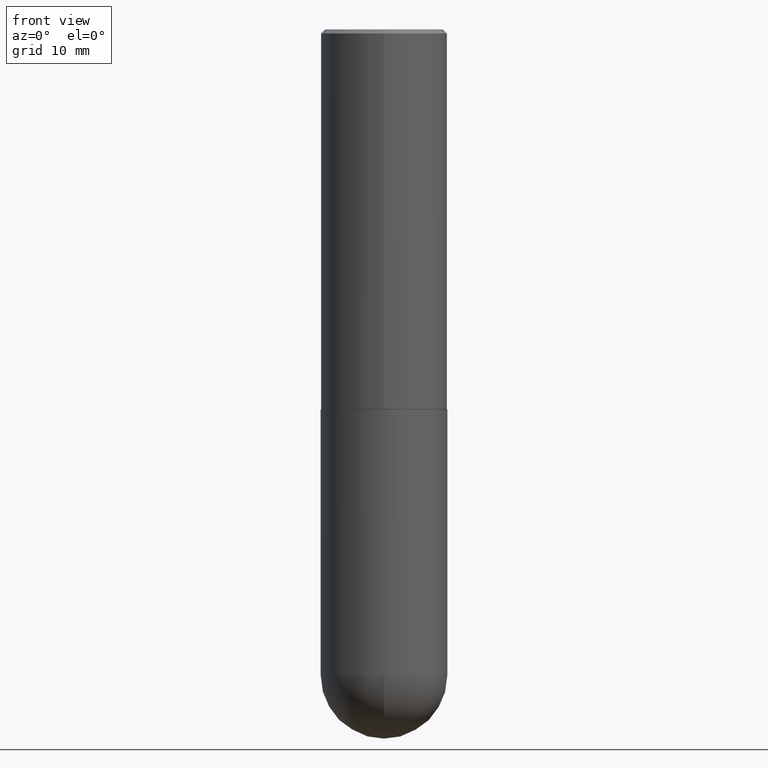
[diagram: clean part render]
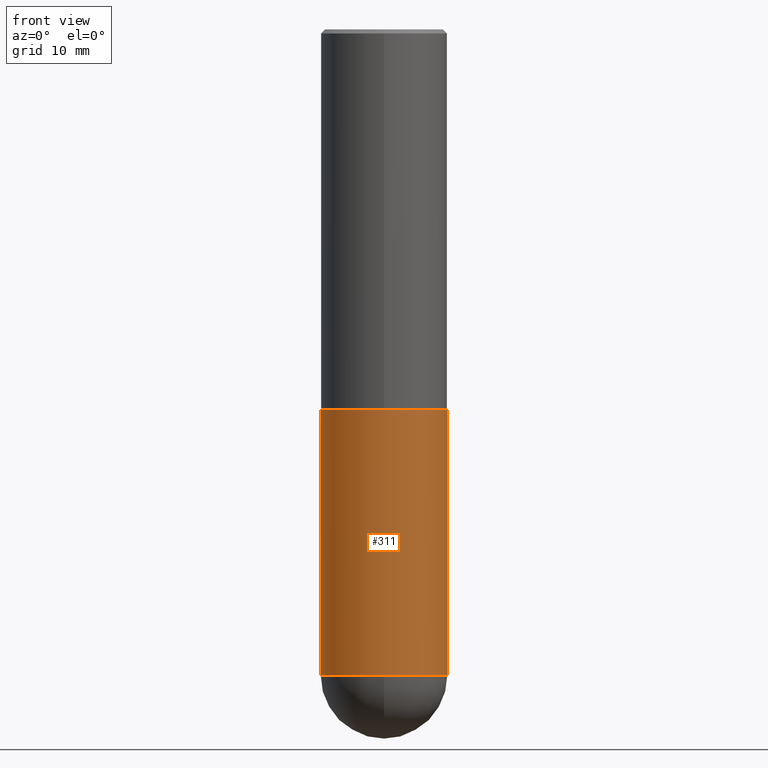
[diagram: same view with one face highlighted and labeled with its STEP entity id]
A machine part, front view. The second image highlights one B-rep face of the part: STEP entity #311.
In plain terms, the highlighted cylindrical surface (partial cylindrical patch) has radius 7.9375 mm, axis along (-0, 0, 1).
Its self-contained STEP definition (entity closure, byte-faithful):
#19 = AXIS2_PLACEMENT_3D ( 'NONE', #284, #356, #394 ) ;
#43 = CARTESIAN_POINT ( 'NONE',  ( 0.3125000000000000000, -8.728703347107855476E-15, -1.874999999999999778 ) ) ;
#47 = VERTEX_POINT ( 'NONE', #154 ) ;
#59 = AXIS2_PLACEMENT_3D ( 'NONE', #305, #405, #365 ) ;
#66 = DIRECTION ( 'NONE',  ( -2.445468806185136877E-29, 3.491481338843145188E-15, 1.000000000000000000 ) ) ;
#67 = CARTESIAN_POINT ( 'NONE',  ( 0.000000000000000000, 0.000000000000000000, 0.000000000000000000 ) ) ;
#69 = ORIENTED_EDGE ( 'NONE', *, *, #91, .T. ) ;
#71 = VERTEX_POINT ( 'NONE', #120 ) ;
#84 = LINE ( 'NONE', #312, #338 ) ;
#85 = CIRCLE ( 'NONE', #19, 0.3125000000000000000 ) ;
#87 = DIRECTION ( 'NONE',  ( 1.000000000000000000, -6.982962677686269077E-15, 0.000000000000000000 ) ) ;
#91 = EDGE_CURVE ( 'NONE', #71, #47, #135, .T. ) ;
#97 = LINE ( 'NONE', #165, #153 ) ;
#108 = CIRCLE ( 'NONE', #59, 0.3125000000000000000 ) ;
#120 = CARTESIAN_POINT ( 'NONE',  ( -2.220446049250237350E-15, -0.3125000000000114908, -3.187499999999998668 ) ) ;
#135 = CIRCLE ( 'NONE', #264, 0.3125000000000000000 ) ;
#153 = VECTOR ( 'NONE', #66, 39.37007874015748143 ) ;
#154 = CARTESIAN_POINT ( 'NONE',  ( 0.3125000000000000000, -1.101998797572367239E-14, -3.187500000000000000 ) ) ;
#165 = CARTESIAN_POINT ( 'NONE',  ( -0.3125000000000000000, 2.220446049250313081E-15, -1.537167215704658232E-29 ) ) ;
#166 = VERTEX_POINT ( 'NONE', #249 ) ;
#168 = ORIENTED_EDGE ( 'NONE', *, *, #376, .T. ) ;
#189 = EDGE_CURVE ( 'NONE', #47, #402, #84, .T. ) ;
#201 = ORIENTED_EDGE ( 'NONE', *, *, #189, .T. ) ;
#210 = EDGE_CURVE ( 'NONE', #268, #402, #85, .T. ) ;
#232 = CARTESIAN_POINT ( 'NONE',  ( -0.3125000000000000000, -6.617366089696398596E-15, -1.874999999999999778 ) ) ;
#248 = ORIENTED_EDGE ( 'NONE', *, *, #210, .F. ) ;
#249 = CARTESIAN_POINT ( 'NONE',  ( -0.3125000000000000000, -6.617366089696400174E-15, -3.187500000000000000 ) ) ;
#264 = AXIS2_PLACEMENT_3D ( 'NONE', #283, #286, #87 ) ;
#265 = AXIS2_PLACEMENT_3D ( 'NONE', #67, #322, #291 ) ;
#268 = VERTEX_POINT ( 'NONE', #232 ) ;
#283 = CARTESIAN_POINT ( 'NONE',  ( 7.794931819715121781E-29, -1.112909676756252622E-14, -3.187500000000000000 ) ) ;
#284 = CARTESIAN_POINT ( 'NONE',  ( 4.585254011597130558E-29, -6.546527510330897918E-15, -1.874999999999999778 ) ) ;
#286 = DIRECTION ( 'NONE',  ( -2.445468806185136597E-29, 3.491481338843145583E-15, 1.000000000000000000 ) ) ;
#291 = DIRECTION ( 'NONE',  ( 1.000000000000000000, -6.982962677686266711E-15, 4.876176775795936353E-29 ) ) ;
#295 = ORIENTED_EDGE ( 'NONE', *, *, #321, .F. ) ;
#305 = CARTESIAN_POINT ( 'NONE',  ( 7.794931819715121781E-29, -1.112909676756252622E-14, -3.187500000000000000 ) ) ;
#311 = ADVANCED_FACE ( 'NONE', ( #319 ), #351, .T. ) ;
#312 = CARTESIAN_POINT ( 'NONE',  ( 0.3125000000000000000, -2.182175836776958347E-15, 1.523805242436230075E-29 ) ) ;
#319 = FACE_OUTER_BOUND ( 'NONE', #404, .T. ) ;
#321 = EDGE_CURVE ( 'NONE', #166, #268, #97, .T. ) ;
#322 = DIRECTION ( 'NONE',  ( -2.445468806185136597E-29, 3.491481338843145583E-15, 1.000000000000000000 ) ) ;
#338 = VECTOR ( 'NONE', #343, 39.37007874015748143 ) ;
#343 = DIRECTION ( 'NONE',  ( -2.445468806185136877E-29, 3.491481338843145188E-15, 1.000000000000000000 ) ) ;
#351 = CYLINDRICAL_SURFACE ( 'NONE', #265, 0.3125000000000000000 ) ;
#356 = DIRECTION ( 'NONE',  ( -2.445468806185136597E-29, 3.491481338843145583E-15, 1.000000000000000000 ) ) ;
#365 = DIRECTION ( 'NONE',  ( 1.000000000000000000, -6.982962677686269077E-15, 0.000000000000000000 ) ) ;
#376 = EDGE_CURVE ( 'NONE', #166, #71, #108, .T. ) ;
#394 = DIRECTION ( 'NONE',  ( 1.000000000000000000, -6.982962677686265133E-15, 0.000000000000000000 ) ) ;
#402 = VERTEX_POINT ( 'NONE', #43 ) ;
#404 = EDGE_LOOP ( 'NONE', ( #295, #168, #69, #201, #248 ) ) ;
#405 = DIRECTION ( 'NONE',  ( -2.445468806185136597E-29, 3.491481338843145583E-15, 1.000000000000000000 ) ) ;